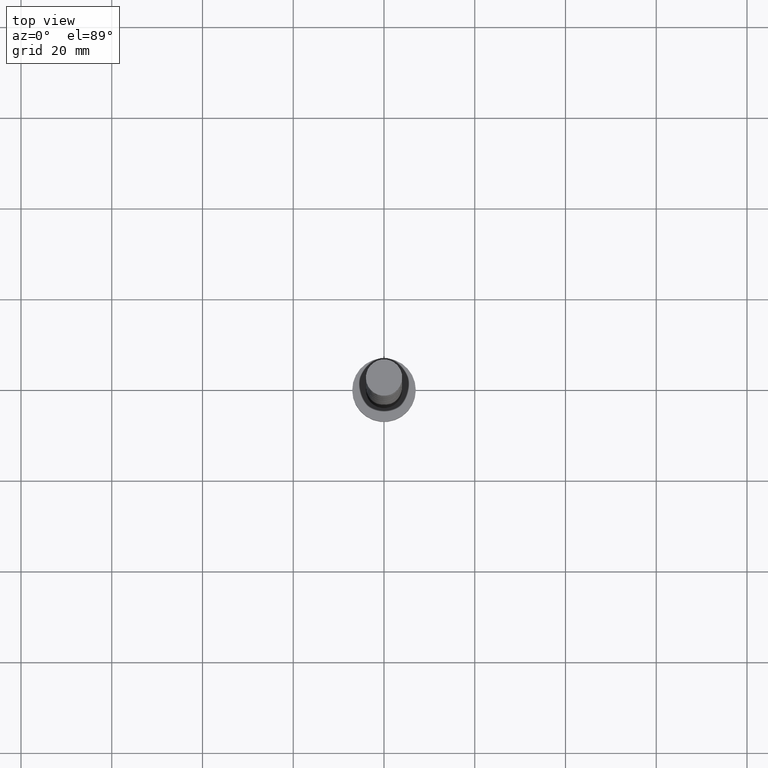
[diagram: clean part render]
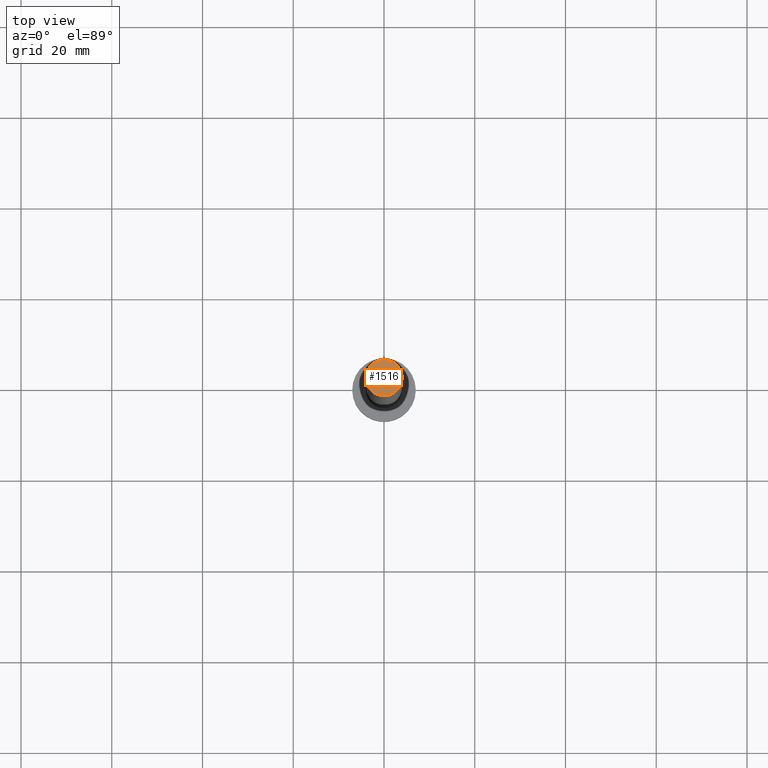
[diagram: same view with one face highlighted and labeled with its STEP entity id]
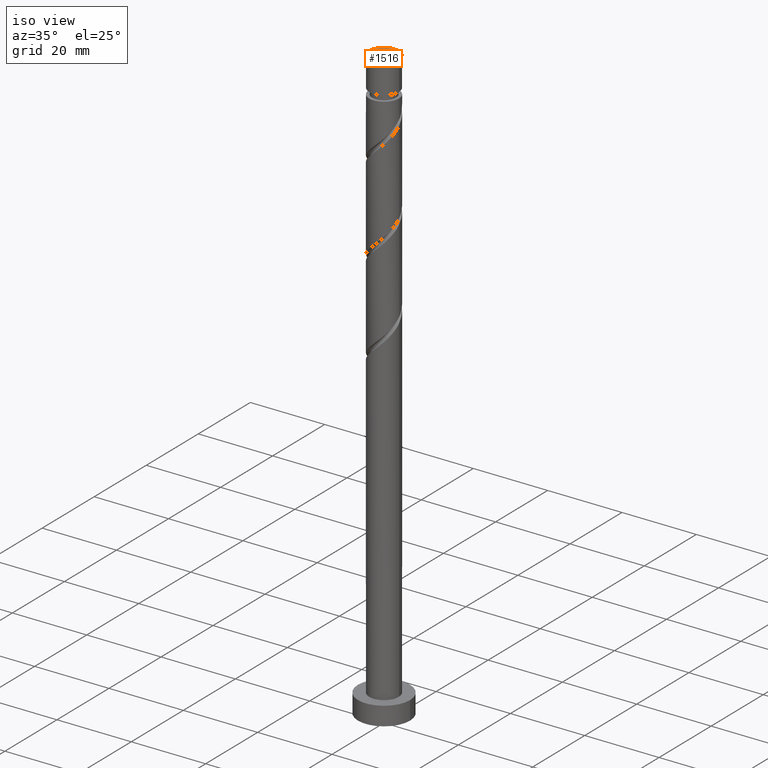
[diagram: same view with one face highlighted and labeled with its STEP entity id]
A machine part, top view. The second image highlights one B-rep face of the part: STEP entity #1516.
A second angle (iso view) of the same face is appended — the face is thin or edge-on in the first view.
In plain terms, the highlighted planar face has unit normal (0, 0, 1).
Its self-contained STEP definition (entity closure, byte-faithful):
#2 = ORIENTED_EDGE ( 'NONE', *, *, #501, .T. ) ;
#3 = DIRECTION ( 'NONE',  ( 0.000000000000000000, 0.000000000000000000, 1.000000000000000000 ) ) ;
#351 = FACE_OUTER_BOUND ( 'NONE', #499, .T. ) ;
#370 = VERTEX_POINT ( 'NONE', #1489 ) ;
#494 = CARTESIAN_POINT ( 'NONE',  ( -4.000000000000000000, 0.000000000000000000, 160.0000000000000000 ) ) ;
#499 = EDGE_LOOP ( 'NONE', ( #2, #1612 ) ) ;
#501 = EDGE_CURVE ( 'NONE', #742, #370, #1198, .T. ) ;
#513 = CARTESIAN_POINT ( 'NONE',  ( 0.000000000000000000, 0.000000000000000000, 160.0000000000000000 ) ) ;
#516 = DIRECTION ( 'NONE',  ( 1.000000000000000000, 0.000000000000000000, 0.000000000000000000 ) ) ;
#710 = CARTESIAN_POINT ( 'NONE',  ( 0.000000000000000000, 0.000000000000000000, 160.0000000000000000 ) ) ;
#726 = DIRECTION ( 'NONE',  ( 0.000000000000000000, 0.000000000000000000, 1.000000000000000000 ) ) ;
#742 = VERTEX_POINT ( 'NONE', #494 ) ;
#813 = AXIS2_PLACEMENT_3D ( 'NONE', #513, #3, #516 ) ;
#1040 = DIRECTION ( 'NONE',  ( 0.000000000000000000, 0.000000000000000000, 1.000000000000000000 ) ) ;
#1045 = AXIS2_PLACEMENT_3D ( 'NONE', #710, #726, #1627 ) ;
#1198 = CIRCLE ( 'NONE', #813, 4.000000000000000000 ) ;
#1227 = AXIS2_PLACEMENT_3D ( 'NONE', #1530, #1040, #1408 ) ;
#1400 = EDGE_CURVE ( 'NONE', #370, #742, #1620, .T. ) ;
#1408 = DIRECTION ( 'NONE',  ( 1.000000000000000000, 0.000000000000000000, -0.000000000000000000 ) ) ;
#1489 = CARTESIAN_POINT ( 'NONE',  ( 4.000000000000000000, 4.898587196589412829E-16, 160.0000000000000000 ) ) ;
#1516 = ADVANCED_FACE ( 'NONE', ( #351 ), #1547, .T. ) ;
#1530 = CARTESIAN_POINT ( 'NONE',  ( 0.000000000000000000, 0.000000000000000000, 160.0000000000000000 ) ) ;
#1547 = PLANE ( 'NONE',  #1227 ) ;
#1612 = ORIENTED_EDGE ( 'NONE', *, *, #1400, .T. ) ;
#1620 = CIRCLE ( 'NONE', #1045, 4.000000000000000000 ) ;
#1627 = DIRECTION ( 'NONE',  ( 1.000000000000000000, 0.000000000000000000, 0.000000000000000000 ) ) ;